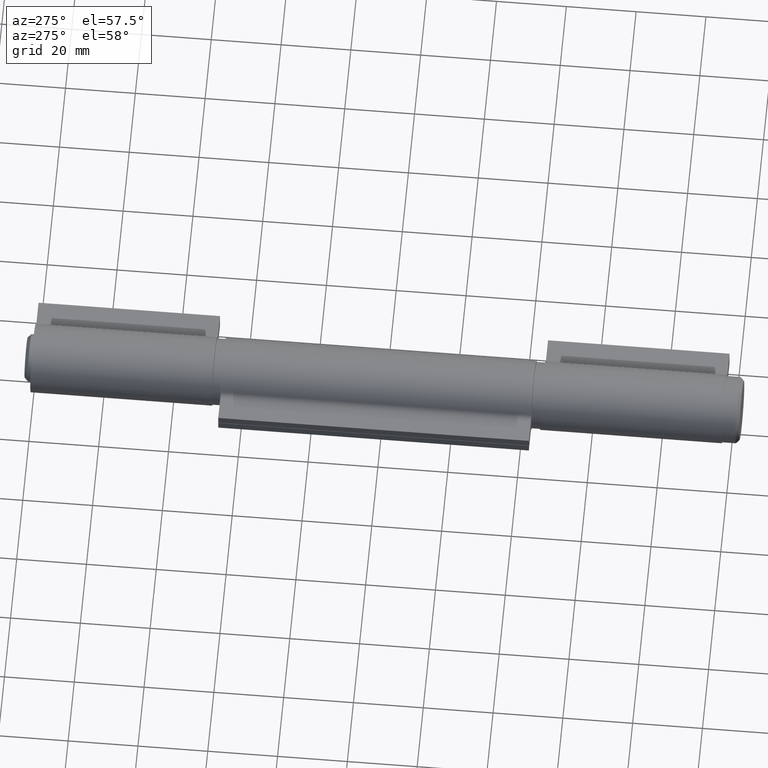
[diagram: clean part render]
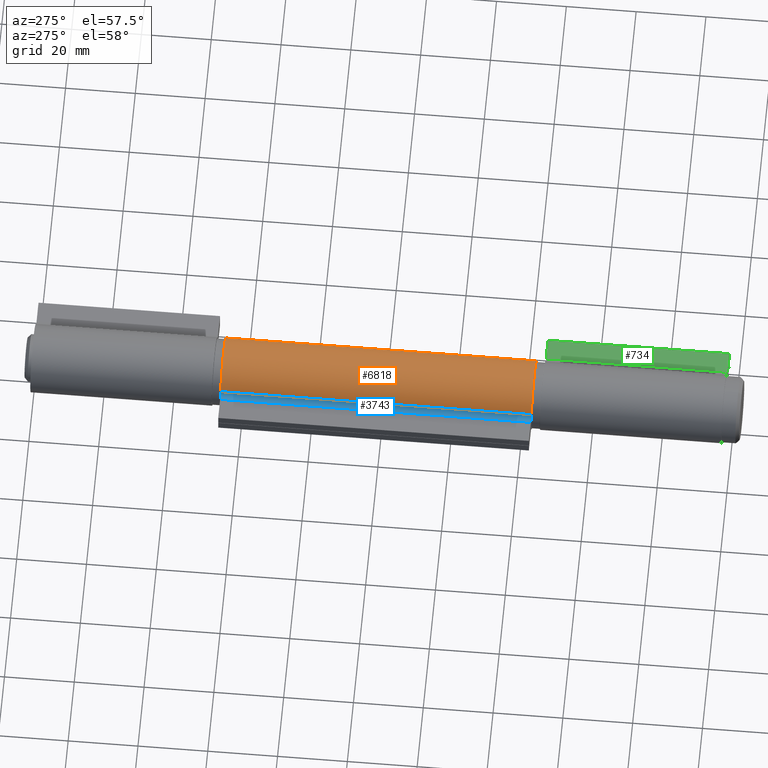
[diagram: same view with three faces highlighted in distinct colors, each labeled with its STEP entity id]
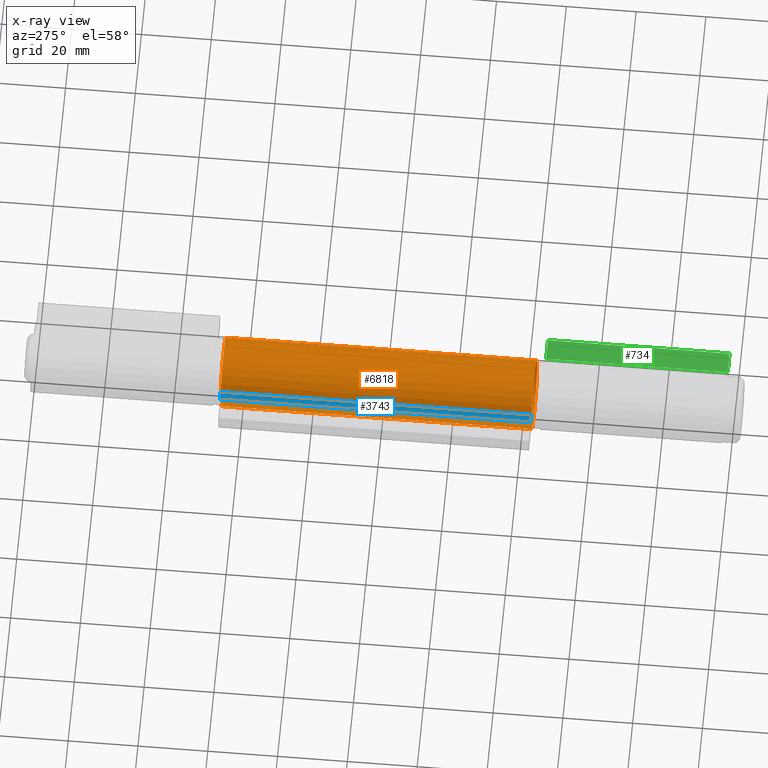
[diagram: x-ray of the same camera — body ghosted, the three highlighted faces saturated]
A machine part, auxiliary view with three faces highlighted in distinct colors.
The next image is the same camera in x-ray (body ghosted, the three faces saturated) — at least one of them is partly hidden behind the body in this view.
Their STEP definitions:

[orange] entity #6818 — the highlighted cylindrical surface (edge-blend (fillet) strip) has radius 9.8 mm, axis along (-0, -1, 0).
#16 = ORIENTED_EDGE ( 'NONE', *, *, #12492, .F. ) ;
#64 = DIRECTION ( 'NONE',  ( -0.000000000000000000, -1.000000000000000000, -0.000000000000000000 ) ) ;
#73 = FACE_OUTER_BOUND ( 'NONE', #8380, .T. ) ;
#111 = LINE ( 'NONE', #10988, #9088 ) ;
#287 = ORIENTED_EDGE ( 'NONE', *, *, #3049, .T. ) ;
#337 = DIRECTION ( 'NONE',  ( 0.000000000000000000, 0.000000000000000000, 1.000000000000000000 ) ) ;
#485 = VERTEX_POINT ( 'NONE', #5882 ) ;
#892 = LINE ( 'NONE', #10766, #1191 ) ;
#1191 = VECTOR ( 'NONE', #64, 1000.000000000000000 ) ;
#1269 = DIRECTION ( 'NONE',  ( 0.000000000000000000, 1.000000000000000000, 0.000000000000000000 ) ) ;
#2097 = CARTESIAN_POINT ( 'NONE',  ( 3.778813559322034443, 44.50000000000000000, -9.042155057500615101 ) ) ;
#2486 = DIRECTION ( 'NONE',  ( 0.000000000000000000, 0.000000000000000000, -1.000000000000000000 ) ) ;
#2864 = AXIS2_PLACEMENT_3D ( 'NONE', #5029, #1269, #11818 ) ;
#3049 = EDGE_CURVE ( 'NONE', #3737, #485, #4363, .T. ) ;
#3216 = CARTESIAN_POINT ( 'NONE',  ( 0.000000000000000000, 44.50000000000000000, 0.000000000000000000 ) ) ;
#3737 = VERTEX_POINT ( 'NONE', #6161 ) ;
#3914 = CIRCLE ( 'NONE', #2864, 9.799999999999998934 ) ;
#4097 = EDGE_CURVE ( 'NONE', #7022, #7625, #3914, .T. ) ;
#4136 = DIRECTION ( 'NONE',  ( -0.000000000000000000, -1.000000000000000000, -0.000000000000000000 ) ) ;
#4363 = CIRCLE ( 'NONE', #10502, 9.799999999999998934 ) ;
#4991 = CARTESIAN_POINT ( 'NONE',  ( 0.000000000000000000, -44.50000000000000000, 0.000000000000000000 ) ) ;
#5029 = CARTESIAN_POINT ( 'NONE',  ( 0.000000000000000000, 44.50000000000000000, 0.000000000000000000 ) ) ;
#5097 = AXIS2_PLACEMENT_3D ( 'NONE', #3216, #6202, #2486 ) ;
#5660 = ORIENTED_EDGE ( 'NONE', *, *, #12084, .T. ) ;
#5688 = ORIENTED_EDGE ( 'NONE', *, *, #4097, .F. ) ;
#5882 = CARTESIAN_POINT ( 'NONE',  ( 3.778813559322034443, -44.50000000000000000, -9.042155057500615101 ) ) ;
#6161 = CARTESIAN_POINT ( 'NONE',  ( -3.778813559322030446, -44.50000000000000000, -9.042155057500616877 ) ) ;
#6202 = DIRECTION ( 'NONE',  ( -0.000000000000000000, -1.000000000000000000, -0.000000000000000000 ) ) ;
#6818 = ADVANCED_FACE ( 'NONE', ( #73 ), #11306, .T. ) ;
#7022 = VERTEX_POINT ( 'NONE', #9592 ) ;
#7625 = VERTEX_POINT ( 'NONE', #2097 ) ;
#8380 = EDGE_LOOP ( 'NONE', ( #287, #16, #5688, #5660 ) ) ;
#9088 = VECTOR ( 'NONE', #4136, 1000.000000000000000 ) ;
#9592 = CARTESIAN_POINT ( 'NONE',  ( -3.778813559322030446, 44.50000000000000000, -9.042155057500616877 ) ) ;
#10502 = AXIS2_PLACEMENT_3D ( 'NONE', #4991, #11817, #337 ) ;
#10766 = CARTESIAN_POINT ( 'NONE',  ( -3.778813559322030446, 44.50000000000000000, -9.042155057500616877 ) ) ;
#10988 = CARTESIAN_POINT ( 'NONE',  ( 3.778813559322034443, 44.50000000000000000, -9.042155057500615101 ) ) ;
#11306 = CYLINDRICAL_SURFACE ( 'NONE', #5097, 9.799999999999998934 ) ;
#11817 = DIRECTION ( 'NONE',  ( 0.000000000000000000, 1.000000000000000000, 0.000000000000000000 ) ) ;
#11818 = DIRECTION ( 'NONE',  ( 0.000000000000000000, 0.000000000000000000, 1.000000000000000000 ) ) ;
#12084 = EDGE_CURVE ( 'NONE', #7022, #3737, #892, .T. ) ;
#12492 = EDGE_CURVE ( 'NONE', #7625, #485, #111, .T. ) ;

[blue] entity #3743 — the highlighted cylindrical surface (edge-blend (fillet) strip) has radius 2 mm, axis along (-0, -1, 0).
#64 = DIRECTION ( 'NONE',  ( -0.000000000000000000, -1.000000000000000000, -0.000000000000000000 ) ) ;
#340 = DIRECTION ( 'NONE',  ( -0.000000000000000000, -1.000000000000000000, -0.000000000000000000 ) ) ;
#384 = DIRECTION ( 'NONE',  ( 0.000000000000000000, 0.000000000000000000, -1.000000000000000000 ) ) ;
#780 = LINE ( 'NONE', #12183, #3200 ) ;
#882 = EDGE_CURVE ( 'NONE', #1668, #9828, #780, .T. ) ;
#892 = LINE ( 'NONE', #10766, #1191 ) ;
#1191 = VECTOR ( 'NONE', #64, 1000.000000000000000 ) ;
#1643 = CARTESIAN_POINT ( 'NONE',  ( -2.549999999999998934, -44.50000000000000000, -10.88749282433747645 ) ) ;
#1668 = VERTEX_POINT ( 'NONE', #12258 ) ;
#2157 = CARTESIAN_POINT ( 'NONE',  ( -4.549999999999999822, -44.50000000000000000, -10.88749282433747645 ) ) ;
#2448 = EDGE_LOOP ( 'NONE', ( #12295, #7458, #6311, #6988 ) ) ;
#2598 = EDGE_CURVE ( 'NONE', #1668, #7022, #7559, .T. ) ;
#2649 = CIRCLE ( 'NONE', #6528, 2.000000000000001776 ) ;
#3200 = VECTOR ( 'NONE', #3899, 1000.000000000000000 ) ;
#3737 = VERTEX_POINT ( 'NONE', #6161 ) ;
#3743 = ADVANCED_FACE ( 'NONE', ( #5564 ), #9238, .F. ) ;
#3798 = CARTESIAN_POINT ( 'NONE',  ( -4.549999999999999822, 44.50000000000000000, -10.88749282433747645 ) ) ;
#3885 = DIRECTION ( 'NONE',  ( 0.000000000000000000, 0.000000000000000000, -1.000000000000000000 ) ) ;
#3899 = DIRECTION ( 'NONE',  ( -0.000000000000000000, -1.000000000000000000, -0.000000000000000000 ) ) ;
#3937 = DIRECTION ( 'NONE',  ( 0.000000000000000000, 0.000000000000000000, -1.000000000000000000 ) ) ;
#4329 = AXIS2_PLACEMENT_3D ( 'NONE', #9043, #340, #384 ) ;
#4818 = DIRECTION ( 'NONE',  ( -0.000000000000000000, -1.000000000000000000, 0.000000000000000000 ) ) ;
#5030 = DIRECTION ( 'NONE',  ( -0.000000000000000000, -1.000000000000000000, 0.000000000000000000 ) ) ;
#5564 = FACE_OUTER_BOUND ( 'NONE', #2448, .T. ) ;
#5815 = EDGE_CURVE ( 'NONE', #9828, #3737, #2649, .T. ) ;
#6161 = CARTESIAN_POINT ( 'NONE',  ( -3.778813559322030446, -44.50000000000000000, -9.042155057500616877 ) ) ;
#6311 = ORIENTED_EDGE ( 'NONE', *, *, #2598, .F. ) ;
#6528 = AXIS2_PLACEMENT_3D ( 'NONE', #2157, #5030, #3937 ) ;
#6988 = ORIENTED_EDGE ( 'NONE', *, *, #882, .T. ) ;
#7022 = VERTEX_POINT ( 'NONE', #9592 ) ;
#7458 = ORIENTED_EDGE ( 'NONE', *, *, #12084, .F. ) ;
#7559 = CIRCLE ( 'NONE', #10924, 2.000000000000001776 ) ;
#9043 = CARTESIAN_POINT ( 'NONE',  ( -4.549999999999999822, 44.50000000000000000, -10.88749282433747645 ) ) ;
#9238 = CYLINDRICAL_SURFACE ( 'NONE', #4329, 2.000000000000001776 ) ;
#9592 = CARTESIAN_POINT ( 'NONE',  ( -3.778813559322030446, 44.50000000000000000, -9.042155057500616877 ) ) ;
#9828 = VERTEX_POINT ( 'NONE', #1643 ) ;
#10766 = CARTESIAN_POINT ( 'NONE',  ( -3.778813559322030446, 44.50000000000000000, -9.042155057500616877 ) ) ;
#10924 = AXIS2_PLACEMENT_3D ( 'NONE', #3798, #4818, #3885 ) ;
#12084 = EDGE_CURVE ( 'NONE', #7022, #3737, #892, .T. ) ;
#12183 = CARTESIAN_POINT ( 'NONE',  ( -2.549999999999998934, 44.50000000000000000, -10.88749282433747645 ) ) ;
#12258 = CARTESIAN_POINT ( 'NONE',  ( -2.549999999999998934, 44.50000000000000000, -10.88749282433747645 ) ) ;
#12295 = ORIENTED_EDGE ( 'NONE', *, *, #5815, .T. ) ;

[green] entity #734 — the highlighted planar face has unit normal (0, 0, -1).
#447 = CARTESIAN_POINT ( 'NONE',  ( 2.550000000000019806, 25.99999999999999645, -10.88749282433755639 ) ) ;
#559 = DIRECTION ( 'NONE',  ( 6.870184174462889096E-17, 0.000000000000000000, -1.000000000000000000 ) ) ;
#592 = VECTOR ( 'NONE', #1459, 1000.000000000000000 ) ;
#734 = ADVANCED_FACE ( 'NONE', ( #4555 ), #10961, .F. ) ;
#1431 = EDGE_CURVE ( 'NONE', #12205, #7205, #2563, .T. ) ;
#1459 = DIRECTION ( 'NONE',  ( 0.000000000000000000, -1.000000000000000000, 0.000000000000000000 ) ) ;
#2139 = ORIENTED_EDGE ( 'NONE', *, *, #10627, .T. ) ;
#2472 = LINE ( 'NONE', #7068, #10540 ) ;
#2563 = LINE ( 'NONE', #5450, #9269 ) ;
#3383 = VERTEX_POINT ( 'NONE', #6987 ) ;
#4555 = FACE_OUTER_BOUND ( 'NONE', #6536, .T. ) ;
#4744 = CARTESIAN_POINT ( 'NONE',  ( 2.550000000000020250, 25.99999999999999645, -17.20000000000015916 ) ) ;
#4926 = VERTEX_POINT ( 'NONE', #7020 ) ;
#5450 = CARTESIAN_POINT ( 'NONE',  ( 2.550000000000020250, 25.99999999999999645, -17.20000000000015916 ) ) ;
#5820 = CARTESIAN_POINT ( 'NONE',  ( 2.550000000000020250, -25.99999999999999645, -17.20000000000015916 ) ) ;
#6536 = EDGE_LOOP ( 'NONE', ( #2139, #11587, #9149, #8079 ) ) ;
#6987 = CARTESIAN_POINT ( 'NONE',  ( 2.550000000000019806, 25.99999999999999645, -10.88749282433755639 ) ) ;
#7020 = CARTESIAN_POINT ( 'NONE',  ( 2.550000000000019806, -25.99999999999999645, -10.88749282433755639 ) ) ;
#7068 = CARTESIAN_POINT ( 'NONE',  ( 2.550000000000020250, 25.99999999999999645, -17.20000000000015916 ) ) ;
#7205 = VERTEX_POINT ( 'NONE', #5820 ) ;
#7384 = LINE ( 'NONE', #447, #592 ) ;
#7390 = DIRECTION ( 'NONE',  ( 0.000000000000000000, -1.000000000000000000, 0.000000000000000000 ) ) ;
#7936 = EDGE_CURVE ( 'NONE', #3383, #12205, #2472, .T. ) ;
#8079 = ORIENTED_EDGE ( 'NONE', *, *, #11607, .T. ) ;
#8142 = DIRECTION ( 'NONE',  ( 6.870184174462889096E-17, 0.000000000000000000, -1.000000000000000000 ) ) ;
#8516 = VECTOR ( 'NONE', #8142, 1000.000000000000000 ) ;
#9050 = DIRECTION ( 'NONE',  ( -1.000000000000000000, 0.000000000000000000, -6.870184174462889096E-17 ) ) ;
#9132 = DIRECTION ( 'NONE',  ( -6.870184174462889096E-17, 0.000000000000000000, 1.000000000000000000 ) ) ;
#9149 = ORIENTED_EDGE ( 'NONE', *, *, #7936, .F. ) ;
#9269 = VECTOR ( 'NONE', #7390, 1000.000000000000000 ) ;
#9761 = LINE ( 'NONE', #12045, #8516 ) ;
#10540 = VECTOR ( 'NONE', #559, 1000.000000000000000 ) ;
#10627 = EDGE_CURVE ( 'NONE', #4926, #7205, #9761, .T. ) ;
#10723 = AXIS2_PLACEMENT_3D ( 'NONE', #11871, #9050, #9132 ) ;
#10961 = PLANE ( 'NONE',  #10723 ) ;
#11587 = ORIENTED_EDGE ( 'NONE', *, *, #1431, .F. ) ;
#11607 = EDGE_CURVE ( 'NONE', #3383, #4926, #7384, .T. ) ;
#11871 = CARTESIAN_POINT ( 'NONE',  ( 2.550000000000020250, 25.99999999999999645, -17.20000000000015916 ) ) ;
#12045 = CARTESIAN_POINT ( 'NONE',  ( 2.550000000000020250, -25.99999999999999645, -17.20000000000015916 ) ) ;
#12205 = VERTEX_POINT ( 'NONE', #4744 ) ;